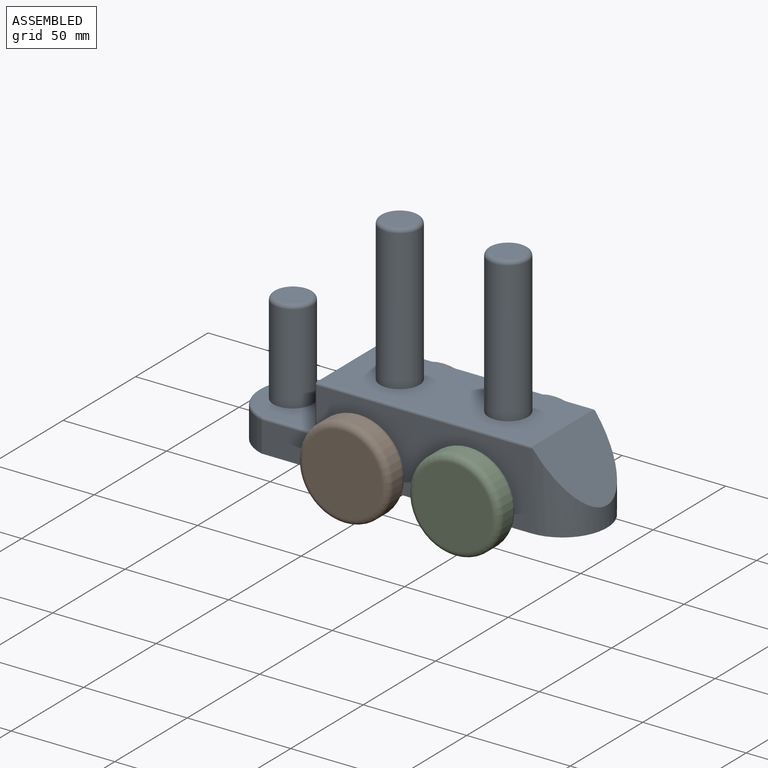
[diagram: assembled view]
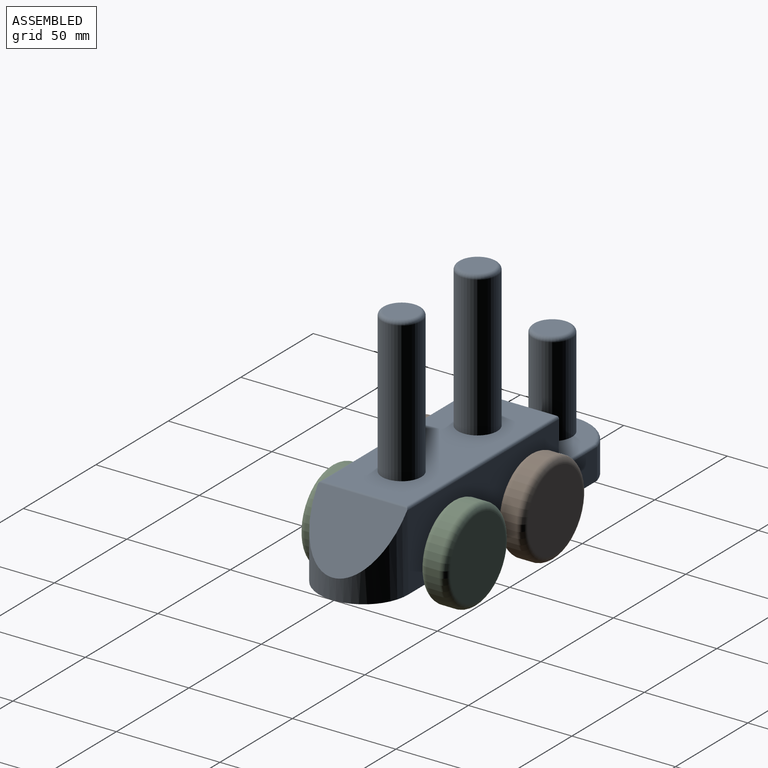
[diagram: assembled view, second angle]
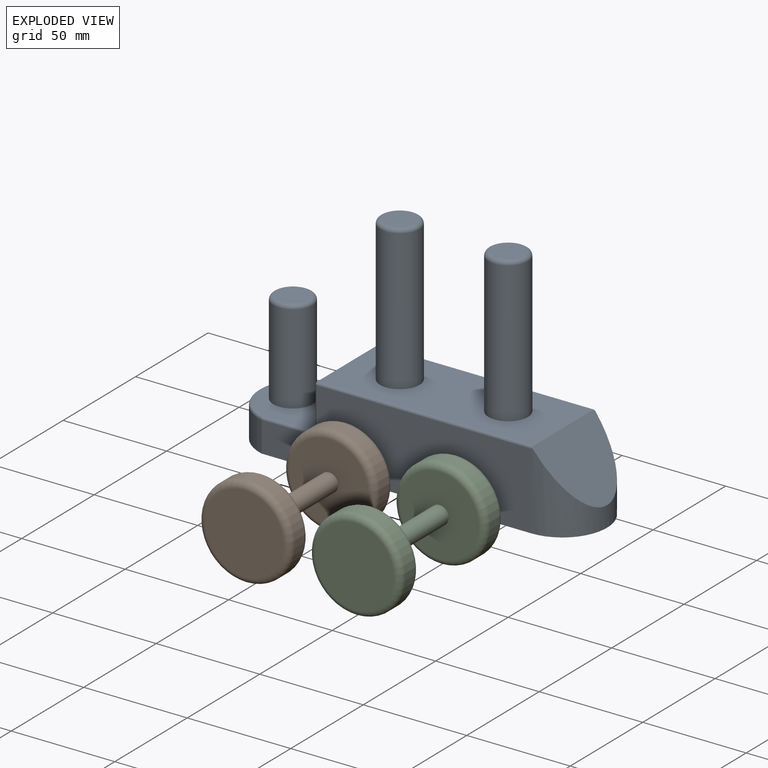
[diagram: exploded view]
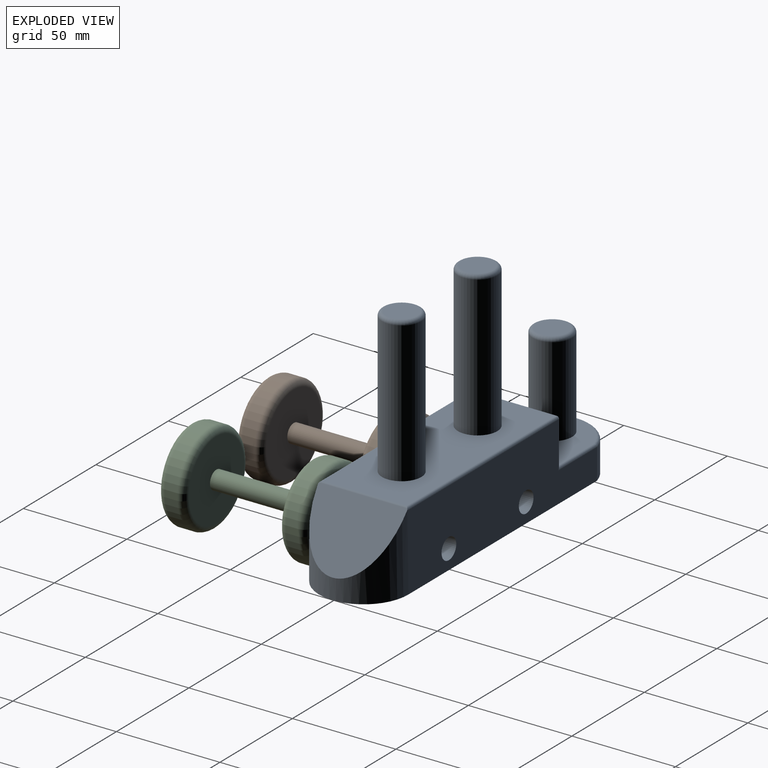
[diagram: exploded view, second angle]
ASSEMBLY  parts=3 mates=2
PART A: 31 faces, bbox 169.9x46.7x108 mm
  f0: plane 168.09x43.18mm, normal (0,0,-1), area 6873.2mm2, adj f4,f5,f12,f16
  f1: plane 102.88x40.64mm, normal (0,0,1), area 3610.9mm2, adj f6,f8,f23,f26,f27,f28
  f2: plane 40.64x20.96mm, normal (-1,0,0), area 851.6mm2, adj f3,f21,f22,f23
  f3: plane 40.64x40.46mm, normal (0,0,1), area 1196mm2, adj f2,f13,f18,f19,f20
  f4: plane 130.18x36.83mm, normal (0,-1,0), area 4039.5mm2, adj f0,f12,f16,f20,f22,f27,f29,f30
  f5: plane 130.18x36.83mm, normal (0,1,0), area 4039.5mm2, adj f0,f12,f16,f19,f21,f26,f29,f30
  f6: cylinder r=9.53mm len=67.95mm, axis (0,0,-1), area 4066.3mm2, adj f1,f11
  f7: plane 15.24x15.24mm, normal (0,0,1), area 182.4mm2, adj f11
  f8: cylinder r=9.53mm len=67.95mm, axis (0,0,-1), area 4066.3mm2, adj f1,f10
  f9: plane 15.24x15.24mm, normal (0,0,1), area 182.4mm2, adj f10
  f10: torus R=7.62mm, axis (0,0,1), area 166.1mm2, adj f8,f9
  f11: torus R=7.62mm, axis (0,0,1), area 166.1mm2, adj f6,f7
  f12: cylinder r=22.44mm len=43.18mm, axis (0,0,-1), area 848.8mm2, adj f0,f4,f5,f18
  f13: cylinder r=9.53mm len=43.18mm, axis (0,0,-1), area 2584.2mm2, adj f3,f15
  f14: plane 15.24x15.24mm, normal (0,0,1), area 182.4mm2, adj f15
  f15: torus R=7.62mm, axis (0,0,-1), area 166.1mm2, adj f13,f14
  f16: cylinder r=21.59mm len=43.18mm, axis (0,0,-1), area 1363.1mm2, adj f0,f4,f5,f17,f26,f27
  f17: plane 43.15x27.76mm, normal (0.79,0,0.61), area 1178.7mm2, adj f16,f26,f27,f28
  f18: torus R=21.17mm, axis (0,0,1), area 113.3mm2, adj f3,f12,f19,f20
  f19: cylinder r=1.27mm len=26.67mm, axis (-1,0,0), area 51.5mm2, adj f3,f5,f18,f21
  f20: cylinder r=1.27mm len=26.67mm, axis (1,0,0), area 51.5mm2, adj f3,f4,f18,f22
  f21: cylinder r=1.27mm len=22.23mm, axis (0,0,-1), area 42.7mm2, adj f2,f5,f19,f24
  f22: cylinder r=1.27mm len=22.23mm, axis (0,0,1), area 42.7mm2, adj f2,f4,f20,f25
  f23: cylinder r=1.27mm len=40.64mm, axis (0,1,0), area 81.1mm2, adj f1,f2,f24,f25
  f24: sphere r=1.27mm, area 2.5mm2, adj f21,f23,f26
  f25: sphere r=1.27mm, area 2.5mm2, adj f22,f23,f27
  f26: cylinder r=1.27mm len=104.32mm, axis (-1,0,0), area 206.8mm2, adj f1,f5,f16,f17,f24,f28
  f27: cylinder r=1.27mm len=104.32mm, axis (1,0,0), area 206.8mm2, adj f1,f4,f16,f17,f25,f28
  f28: cylinder r=1.27mm len=42.66mm, axis (0,1,0), area 48.7mm2, adj f1,f17,f26,f27
  f29: cylinder r=5.08mm len=43.18mm, axis (0,-1,0), area 1378.2mm2, adj f4,f5
  f30: cylinder r=5.08mm len=43.18mm, axis (0,-1,0), area 1378.2mm2, adj f4,f5
PART B: 11 faces, bbox 48.1x71.1x48.1 mm
  f0: cylinder r=4.45mm len=45.72mm, axis (0,-1,0), area 1276.9mm2, adj f3,f8
  f1: cylinder r=22.23mm len=44.45mm, axis (0,1,0), area 886.7mm2, adj f4,f5
  f2: plane 38.1x38.1mm, normal (0,-1,0), area 1140.1mm2, adj f5
  f3: plane 38.1x38.1mm, normal (0,1,0), area 1078mm2, adj f0,f4
  f4: torus R=19.05mm, axis (0,-1,0), area 660.3mm2, adj f1,f3
  f5: torus R=19.05mm, axis (0,-1,0), area 660.3mm2, adj f1,f2
  f6: cylinder r=22.23mm len=44.45mm, axis (0,-1,0), area 886.7mm2, adj f9,f10
  f7: plane 38.1x38.1mm, normal (0,1,0), area 1140.1mm2, adj f10
  f8: plane 38.1x38.1mm, normal (0,-1,0), area 1078mm2, adj f0,f9
  f9: torus R=19.05mm, axis (0,1,0), area 660.3mm2, adj f6,f8
  f10: torus R=19.05mm, axis (0,1,0), area 660.3mm2, adj f6,f7
PART C: 11 faces, bbox 48.1x71.1x48.1 mm
  f0: cylinder r=4.45mm len=45.72mm, axis (0,-1,0), area 1276.9mm2, adj f3,f8
  f1: cylinder r=22.23mm len=44.45mm, axis (0,-1,0), area 886.7mm2, adj f4,f5
  f2: plane 38.1x38.1mm, normal (0,1,0), area 1140.1mm2, adj f5
  f3: plane 38.1x38.1mm, normal (0,-1,0), area 1078mm2, adj f0,f4
  f4: torus R=19.05mm, axis (0,1,0), area 660.3mm2, adj f1,f3
  f5: torus R=19.05mm, axis (0,1,0), area 660.3mm2, adj f1,f2
  f6: cylinder r=22.23mm len=44.45mm, axis (0,1,0), area 886.7mm2, adj f9,f10
  f7: plane 38.1x38.1mm, normal (0,-1,0), area 1140.1mm2, adj f10
  f8: plane 38.1x38.1mm, normal (0,1,0), area 1078mm2, adj f0,f9
  f9: torus R=19.05mm, axis (0,-1,0), area 660.3mm2, adj f6,f8
  f10: torus R=19.05mm, axis (0,-1,0), area 660.3mm2, adj f6,f7
PLACE A at identity fixed
PLACE B t=(-53.34,0,0)mm
PLACE C t=(53.34,0,0)mm
MATE revolute B.f0 <-> A.f30  axis (0,-1,0) through (-39.92,-21.59,-28.69)mm
MATE revolute C.f0 <-> A.f29  axis (0,-1,0) through (13.42,-21.59,-28.69)mm
